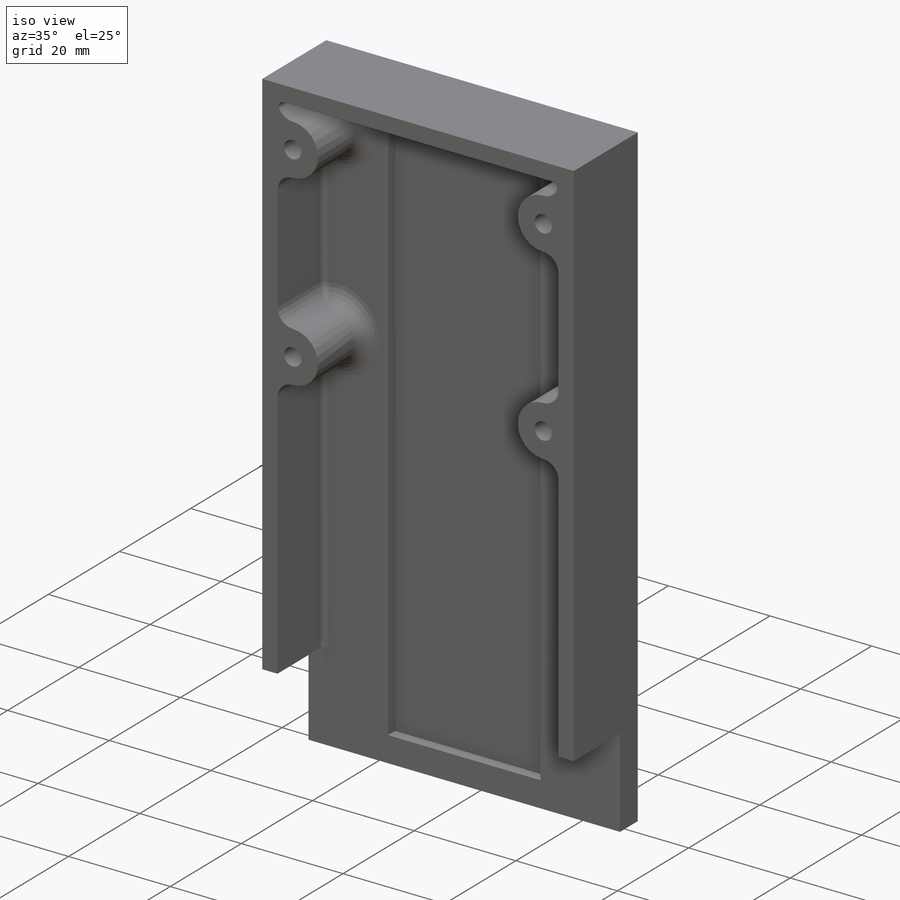
[diagram: iso view]
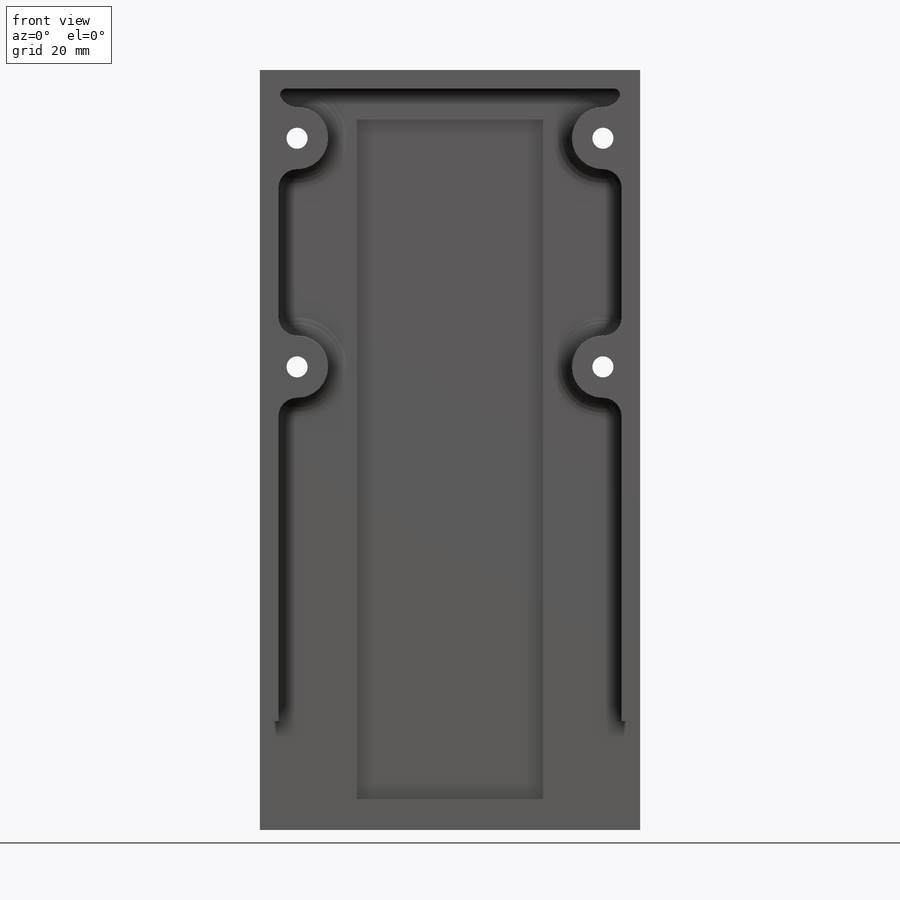
[diagram: front view]
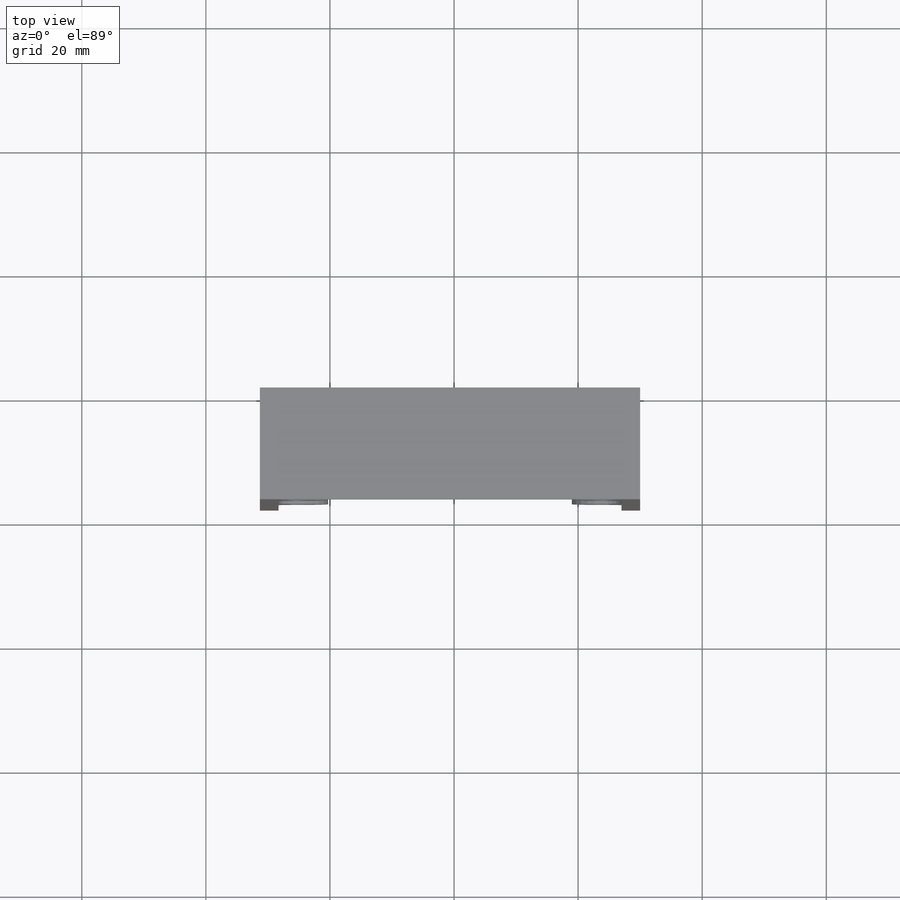
[diagram: top view]
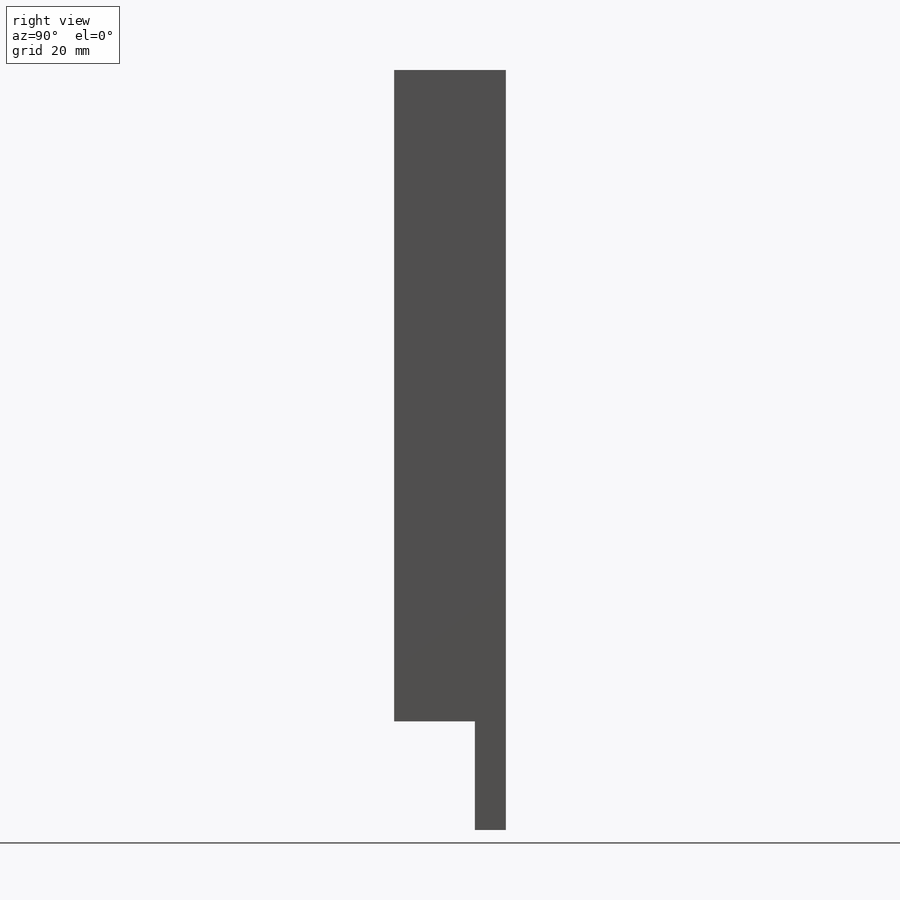
[diagram: right view]
SOLIDWORKS PART (.sldprt)
format: sldprt  version: not decoded by parser v0  size: 498,176 bytes
history: native  units: mm
features: sketch x8, cut_extrude x5, plane x3, extrude x3, fillet x2, material x1 (+9 scaffold rows collapsed)
feature tree (31):
  scaffold x9  (default folders/planes/origin — collapsed)
  material  "Matériau <non spécifié>"
  plane  "Plan de face"
  plane  "Plan de dessus"
  plane  "Plan de droite"
  sketch  "Esquisse1"  dims[c1.D1=~66.079904mm c2.D1=~0.097614deg c3.D1=66.08mm c4.D1=~179.902386deg c5.D1=1.0mm c5.D2=1.0mm c5.D3=8.0mm c5.D4=3.0mm c5.D5=3.0mm c5.D6=3.0mm]
  extrude  "Boss.-Extru.1"  Depth=13mm
  sketch  "Esquisse2"
  extrude  "Boss.-Extru.2"  Depth=5mm
  sketch  "Esquisse3"  dims[D1=10.0mm D2=11.0mm D3=6.0mm D4=6.0mm]
  extrude  "Boss.-Extru.3"  [1 undecoded]
  sketch  "Esquisse4"  dims[D1=3.4mm]
  cut_extrude  "Enlèv. mat.-Extru.1"  [1 undecoded]
  fillet  "Congé1"  Radius=3mm
  cut_extrude  "Congé2"  Depth=3mm
  sketch  "Esquisse5"  dims[D1=3.0mm D2=3.0mm D3=3.0mm D4=3.0mm]
  cut_extrude  "Enlèv. mat.-Extru.2"  Depth=3mm
  sketch  "Esquisse6"  dims[D1=30.0mm D2=5.0mm D3=5.0mm]
  cut_extrude  "Enlèv. mat.-Extru.3"  Depth=2mm
  cut_extrude  "Congé4"  Depth=1mm
  sketch  "Esquisse7"  dims[D5=0.2mm D6=10.0mm D7=5.0mm]
  sketch  "Esquisse8"  dims[D1=6.0mm]
  fillet  "Extru.-Mince2"  Radius=0.2mm
decode coverage: 15 of 18 modeling features carry decoded parameters
note: ~ marks probable driven/reference dimensions
note: 2 parameter values undecoded
note: suppression state not decoded; provenance and decode notes live in map.json
